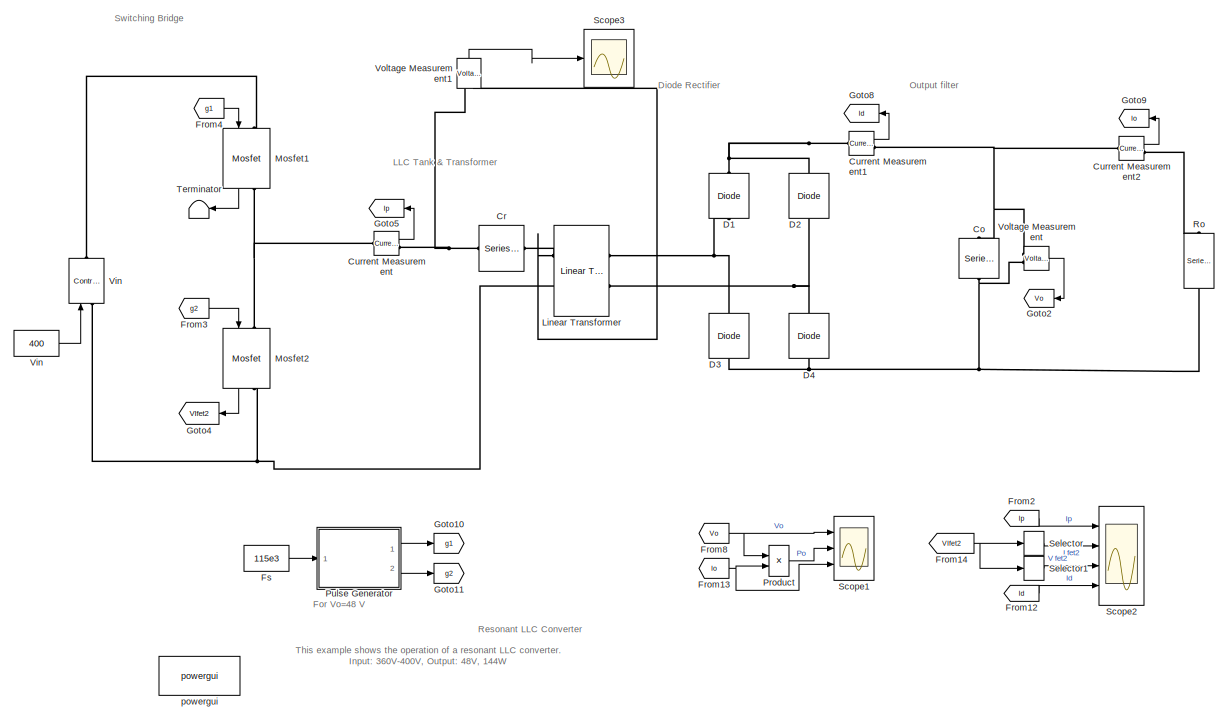
[diagram: root canvas - part 1/2, most of the canvas]
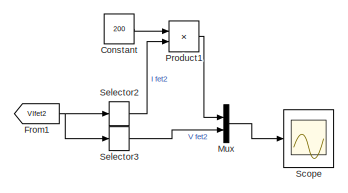
[diagram: root canvas - part 2/2, bottom right region]
MODEL slx_b5e34a728a18
KIND model
CONFIG AbsTol = auto
CONFIG EnableMultiTasking = on
CONFIG FixedStep = auto
CONFIG MaxStep = 1e-4
CONFIG MinStep = auto
CONFIG RelTol = 1e-4
CONFIG SampleTimeConstraint = Unconstrained
CONFIG Solver = VariableStepAuto
CONFIG SolverName = VariableStepAuto
CONFIG StartTime = 0.0
CONFIG StopTime = 0.01
BLOCK [Reference] Co  REF=powerlib/Elements/Series RLC Branch
  Ports = [0, 0, 0, 0, 0, 1, 1]
  SourceBlock = powerlib/Elements/Series RLC Branch
  SourceProductBaseCode = PS
  SourceProductName = Simscape Electrical
  SourceType = Series RLC Branch
BLOCK [Constant] Constant
  Value = 200
BLOCK [Reference] Cr  REF=powerlib/Elements/Series RLC Branch
  Ports = [0, 0, 0, 0, 0, 1, 1]
  SourceBlock = powerlib/Elements/Series RLC Branch
  SourceProductBaseCode = PS
  SourceProductName = Simscape Electrical
  SourceType = Series RLC Branch
BLOCK [Reference] Current Measurement  REF=powerlib/Measurements/Current Measurement
  Ports = [0, 1, 0, 0, 0, 1, 1]
  SourceBlock = powerlib/Measurements/Current Measurement
  SourceProductBaseCode = PS
  SourceProductName = Simscape Electrical
  SourceType = Current Measurement
  UserDataPersistent = on
BLOCK [Reference] Current Measurement1  REF=powerlib/Measurements/Current Measurement
  Ports = [0, 1, 0, 0, 0, 1, 1]
  SourceBlock = powerlib/Measurements/Current Measurement
  SourceProductBaseCode = PS
  SourceProductName = Simscape Electrical
  SourceType = Current Measurement
  UserDataPersistent = on
BLOCK [Reference] Current Measurement2  REF=powerlib/Measurements/Current Measurement
  Ports = [0, 1, 0, 0, 0, 1, 1]
  SourceBlock = powerlib/Measurements/Current Measurement
  SourceProductBaseCode = PS
  SourceProductName = Simscape Electrical
  SourceType = Current Measurement
  UserDataPersistent = on
BLOCK [Reference] D1  REF=powerlib/Power
Electronics/Diode
  Ports = [0, 0, 0, 0, 0, 1, 1]
  SourceBlock = powerlib/Power\nElectronics/Diode
  SourceProductBaseCode = PS
  SourceProductName = Simscape Electrical
  SourceType = Diode
BLOCK [Reference] D2  REF=powerlib/Power
Electronics/Diode
  Ports = [0, 0, 0, 0, 0, 1, 1]
  SourceBlock = powerlib/Power\nElectronics/Diode
  SourceProductBaseCode = PS
  SourceProductName = Simscape Electrical
  SourceType = Diode
BLOCK [Reference] D3  REF=powerlib/Power
Electronics/Diode
  Ports = [0, 0, 0, 0, 0, 1, 1]
  SourceBlock = powerlib/Power\nElectronics/Diode
  SourceProductBaseCode = PS
  SourceProductName = Simscape Electrical
  SourceType = Diode
BLOCK [Reference] D4  REF=powerlib/Power
Electronics/Diode
  Ports = [0, 0, 0, 0, 0, 1, 1]
  SourceBlock = powerlib/Power\nElectronics/Diode
  SourceProductBaseCode = PS
  SourceProductName = Simscape Electrical
  SourceType = Diode
BLOCK [From] From1
  GotoTag = VIfet2
  TagVisibility = global
BLOCK [From] From12
  GotoTag = Id
  TagVisibility = global
BLOCK [From] From13
  GotoTag = Io
  TagVisibility = global
BLOCK [From] From14
  GotoTag = VIfet2
  TagVisibility = global
BLOCK [From] From2
  GotoTag = Ip
  TagVisibility = global
BLOCK [From] From3
  GotoTag = g2
  TagVisibility = global
BLOCK [From] From4
  GotoTag = g1
  TagVisibility = global
BLOCK [From] From8
  GotoTag = Vo
  TagVisibility = global
BLOCK [Constant] Fs
  Value = 115e3
BLOCK [Goto] Goto10
  GotoTag = g1
  TagVisibility = global
BLOCK [Goto] Goto11
  GotoTag = g2
  TagVisibility = global
BLOCK [Goto] Goto2
  GotoTag = Vo
  TagVisibility = global
BLOCK [Goto] Goto4
  GotoTag = VIfet2
  TagVisibility = global
BLOCK [Goto] Goto5
  GotoTag = Ip
  TagVisibility = global
BLOCK [Goto] Goto8
  GotoTag = Id
  TagVisibility = global
BLOCK [Goto] Goto9
  GotoTag = Io
  TagVisibility = global
BLOCK [Reference] Linear Transformer  REF=powerlib/Elements/Linear Transformer
  Ports = [0, 0, 0, 0, 0, 2, 2]
  SourceBlock = powerlib/Elements/Linear Transformer
  SourceProductBaseCode = PS
  SourceProductName = Simscape Electrical
  SourceType = Linear Transformer
BLOCK [Reference] Mosfet1  REF=powerlib/Power
Electronics/Mosfet
  Ports = [1, 1, 0, 0, 0, 1, 1]
  SourceBlock = powerlib/Power\nElectronics/Mosfet
  SourceProductBaseCode = PS
  SourceProductName = Simscape Electrical
  SourceType = Mosfet
BLOCK [Reference] Mosfet2  REF=powerlib/Power
Electronics/Mosfet
  Ports = [1, 1, 0, 0, 0, 1, 1]
  SourceBlock = powerlib/Power\nElectronics/Mosfet
  SourceProductBaseCode = PS
  SourceProductName = Simscape Electrical
  SourceType = Mosfet
BLOCK [Mux] Mux
  DisplayOption = bar
  Inputs = 2
  Ports = [2, 1]
BLOCK [Product] Product
  InputSameDT = off
  OutDataTypeStr = Inherit: Inherit via internal rule
  Ports = [2, 1]
  RndMeth = Floor
  SaturateOnIntegerOverflow = off
BLOCK [Product] Product1
  InputSameDT = off
  OutDataTypeStr = Inherit: Inherit via internal rule
  Ports = [2, 1]
  RndMeth = Floor
  SaturateOnIntegerOverflow = off
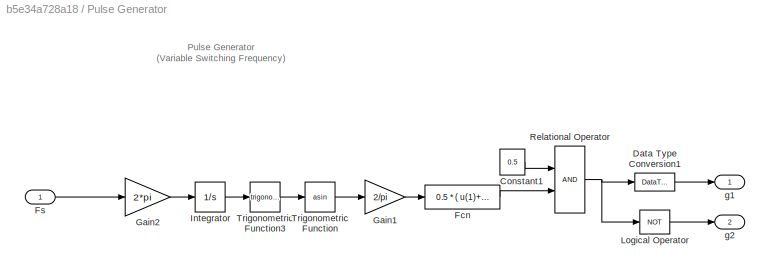
BLOCK [SubSystem] Pulse Generator
  Ports = [1, 2]
  RequestExecContextInheritance = off
BLOCK [Constant] Pulse Generator/Constant1
  Value = 0.5
BLOCK [DataTypeConversion] Pulse Generator/Data Type Conversion1
  OutDataTypeStr = double
  RndMeth = Floor
  SaturateOnIntegerOverflow = off
BLOCK [Fcn] Pulse Generator/Fcn
  Expr = 0.5 * ( u(1)+1 )
BLOCK [Inport] Pulse Generator/Fs
  IconDisplay = Port number
BLOCK [Gain] Pulse Generator/Gain1
  Gain = 2/pi
BLOCK [Gain] Pulse Generator/Gain2
  Gain = 2*pi
BLOCK [Integrator] Pulse Generator/Integrator
  Ports = [1, 1]
BLOCK [Logic] Pulse Generator/Logical Operator
  AllPortsSameDT = off
  Operator = NOT
  OutDataTypeStr = float('double')
  Ports = [1, 1]
BLOCK [RelationalOperator] Pulse Generator/Relational Operator
  InputSameDT = off
  OutDataTypeStr = boolean
  Ports = [2, 1]
BLOCK [Trigonometry] Pulse Generator/Trigonometric Function
  Operator = asin
  Ports = [1, 1]
BLOCK [Trigonometry] Pulse Generator/Trigonometric Function3
  Ports = [1, 1]
BLOCK [Outport] Pulse Generator/g1
  IconDisplay = Port number
  VectorParamsAs1DForOutWhenUnconnected = off
BLOCK [Outport] Pulse Generator/g2
  IconDisplay = Port number
  Port = 2
  VectorParamsAs1DForOutWhenUnconnected = off
BLOCK [Reference] Ro  REF=powerlib/Elements/Series RLC Branch
  Ports = [0, 0, 0, 0, 0, 1, 1]
  SourceBlock = powerlib/Elements/Series RLC Branch
  SourceProductBaseCode = PS
  SourceProductName = Simscape Electrical
  SourceType = Series RLC Branch
BLOCK [Scope] Scope
  Floating = off
  NumInputPorts = 1
  Ports = [1]
  ScopeSpecificationString = Simulink.scopes.TimeScopeBlockCfg('CurrentConfiguration', extmgr.ConfigurationSet(extmgr.Configuration('Core','General UI',true),extmgr.Configuration('Core','Source UI',true),extmgr.Configuration('Sources','WiredSimulink',true,'DataLoggingVariableName','ScopeData1'),extmgr.Configuration('Visuals','Time Domain',true,'SerializedDisplays',{struct('MinYLimReal','-13.71879','MaxYLimReal','57.13338','YL...<+1455ch>
BLOCK [Scope] Scope1
  Floating = off
  NumInputPorts = 3
  Ports = [3]
  ScopeSpecificationString = Simulink.scopes.TimeScopeBlockCfg('CurrentConfiguration', extmgr.ConfigurationSet(extmgr.Configuration('Core','General UI',true),extmgr.Configuration('Core','Source UI',true),extmgr.Configuration('Sources','WiredSimulink',true,'DataLoggingVariableName','ScopeData2'),extmgr.Configuration('Visuals','Time Domain',true,'SerializedDisplays',{struct('MinYLimReal','-6.40206','MaxYLimReal','57.61853','YLa...<+3587ch>
BLOCK [Scope] Scope2
  Floating = off
  NumInputPorts = 4
  Ports = [4]
  ScopeSpecificationString = Simulink.scopes.TimeScopeBlockCfg('CurrentConfiguration', extmgr.ConfigurationSet(extmgr.Configuration('Core','General UI',true,'FigureColor',[1 1 1],'ShowMainToolbar',false,'ShowStatusbar',false),extmgr.Configuration('Core','Source UI',true),extmgr.Configuration('Sources','WiredSimulink',true,'DataLogging',true,'DataLoggingVariableName','Scope1Data','DataLoggingDecimation','1','DataLoggingSaveFor...<+4364ch>
BLOCK [Scope] Scope3
  Floating = off
  NumInputPorts = 1
  Ports = [1]
  ScopeSpecificationString = Simulink.scopes.TimeScopeBlockCfg('CurrentConfiguration', extmgr.ConfigurationSet(extmgr.Configuration('Core','General UI',true),extmgr.Configuration('Core','Source UI',true),extmgr.Configuration('Sources','WiredSimulink',true,'DataLoggingVariableName','ScopeData1'),extmgr.Configuration('Visuals','Time Domain',true,'SerializedDisplays',{struct('MinYLimReal','261.74775','MaxYLimReal','279.62465','Y...<+1466ch>
BLOCK [Selector] Selector
  IndexOptions = Index vector (dialog)
  Indices = 1
  InputPortWidth = 2
  OutputSizes = 1
  Ports = [1, 1]
BLOCK [Selector] Selector1
  IndexOptions = Index vector (dialog)
  Indices = 2
  InputPortWidth = 2
  OutputSizes = 1
  Ports = [1, 1]
BLOCK [Selector] Selector2
  IndexOptions = Index vector (dialog)
  Indices = 1
  InputPortWidth = 2
  OutputSizes = 1
  Ports = [1, 1]
BLOCK [Selector] Selector3
  IndexOptions = Index vector (dialog)
  Indices = 2
  InputPortWidth = 2
  OutputSizes = 1
  Ports = [1, 1]
BLOCK [Terminator] Terminator
BLOCK [Constant] Vin
  Value = 400
BLOCK [Reference] Vin   REF=powerlib/Electrical
Sources/Controlled Voltage Source
  Ports = [1, 0, 0, 0, 0, 1, 1]
  SourceBlock = powerlib/Electrical\nSources/Controlled Voltage Source
  SourceProductBaseCode = PS
  SourceProductName = Simscape Electrical
  SourceType = Controlled Voltage Source
BLOCK [Reference] Voltage Measurement  REF=powerlib/Measurements/Voltage Measurement
  Ports = [0, 1, 0, 0, 0, 2]
  SourceBlock = powerlib/Measurements/Voltage Measurement
  SourceProductBaseCode = PS
  SourceProductName = Simscape Electrical
  SourceType = Voltage Measurement
  UserDataPersistent = on
BLOCK [Reference] Voltage Measurement1  REF=powerlib/Measurements/Voltage Measurement
  Ports = [0, 1, 0, 0, 0, 2]
  SourceBlock = powerlib/Measurements/Voltage Measurement
  SourceProductBaseCode = PS
  SourceProductName = Simscape Electrical
  SourceType = Voltage Measurement
  UserDataPersistent = on
BLOCK [Reference] powergui  REF=powerlib/powergui
  Ports = []
  Priority = 1
  SourceBlock = powerlib/powergui
  SourceProductBaseCode = PS
  SourceProductName = Simscape Electrical
  SourceType = PSB option menu block
ANNOTATION (root): For Vo=48 V
ANNOTATION (root): This example shows the operation of a resonant LLC converter. Input: 360V-400V, Output: 48V, 144W
ANNOTATION (root): Resonant LLC Converter
ANNOTATION (root): Diode Rectifier
ANNOTATION (root): LLC Tank & Transformer
ANNOTATION (root): Output filter
ANNOTATION (root): Switching Bridge
ANNOTATION Pulse Generator: Pulse Generator (Variable Switching Frequency)
LINE Constant:1 -> Product1:1
LINE Current Measurement1:1 -> Goto8:1
LINE Current Measurement2:1 -> Goto9:1
LINE Current Measurement:1 -> Goto5:1
LINE From12:1 -> Scope2:4
NET From13:1 -> Product:2, Scope1:3
NET From14:1 -> Selector1:1, Selector:1
NET From1:1 -> Selector2:1, Selector3:1
LINE From2:1 -> Scope2:1
LINE From3:1 -> Mosfet2:1
LINE From4:1 -> Mosfet1:1
NET From8:1 -> Product:1, Scope1:1
LINE Fs:1 -> Pulse Generator:1
LINE Mosfet1:1 -> Terminator:1
LINE Mosfet2:1 -> Goto4:1
LINE Mux:1 -> Scope:1
LINE Product1:1 -> Mux:1
LINE Product:1 -> Scope1:2
LINE Pulse Generator/Constant1:1 -> Pulse Generator/Relational Operator:1
LINE Pulse Generator/Data Type Conversion1:1 -> Pulse Generator/g1:1
LINE Pulse Generator/Fcn:1 -> Pulse Generator/Relational Operator:2
LINE Pulse Generator/Fs:1 -> Pulse Generator/Gain2:1
LINE Pulse Generator/Gain1:1 -> Pulse Generator/Fcn:1
LINE Pulse Generator/Gain2:1 -> Pulse Generator/Integrator:1
LINE Pulse Generator/Integrator:1 -> Pulse Generator/Trigonometric Function3:1
LINE Pulse Generator/Logical Operator:1 -> Pulse Generator/g2:1
NET Pulse Generator/Relational Operator:1 -> Pulse Generator/Data Type Conversion1:1, Pulse Generator/Logical Operator:1
LINE Pulse Generator/Trigonometric Function3:1 -> Pulse Generator/Trigonometric Function:1
LINE Pulse Generator/Trigonometric Function:1 -> Pulse Generator/Gain1:1
LINE Pulse Generator:1 -> Goto10:1
LINE Pulse Generator:2 -> Goto11:1
LINE Selector1:1 -> Scope2:3
LINE Selector2:1 -> Product1:2
LINE Selector3:1 -> Mux:2
LINE Selector:1 -> Scope2:2
LINE Vin:1 -> Vin :1
LINE Voltage Measurement1:1 -> Scope3:1
LINE Voltage Measurement:1 -> Goto2:1
PNET net1: Co:LConn1 -- Current Measurement1:RConn1 -- Current Measurement2:LConn1 -- Voltage Measurement:LConn1
PNET net2: Co:RConn1 -- D3:LConn1 -- D4:LConn1 -- Ro:RConn1 -- Voltage Measurement:LConn2
PNET net3: Cr:LConn1 -- Current Measurement:RConn1 -- Voltage Measurement1:LConn1
PNET net4: Cr:RConn1 -- Linear Transformer:LConn1 -- Voltage Measurement1:LConn2
PNET net5: Current Measurement1:LConn1 -- D1:RConn1 -- D2:RConn1
PLINE Current Measurement2:RConn1 -- Ro:LConn1
PNET net6: Current Measurement:LConn1 -- Mosfet1:RConn1 -- Mosfet2:LConn1
PNET net7: D1:LConn1 -- D3:RConn1 -- Linear Transformer:RConn1
PNET net8: D2:LConn1 -- D4:RConn1 -- Linear Transformer:RConn2
PNET net9: Linear Transformer:LConn2 -- Mosfet2:RConn1 -- Vin :LConn1
PLINE Mosfet1:LConn1 -- Vin :RConn1
note: NET lines group one-source signal fan-out (src -> all destinations, sorted); 1:1 wires keep LINE; PNET lines group multi-terminal physical nets as a canonical sorted terminal list (undirected conserving connections); 2-terminal nets keep the pairwise PLINE form
